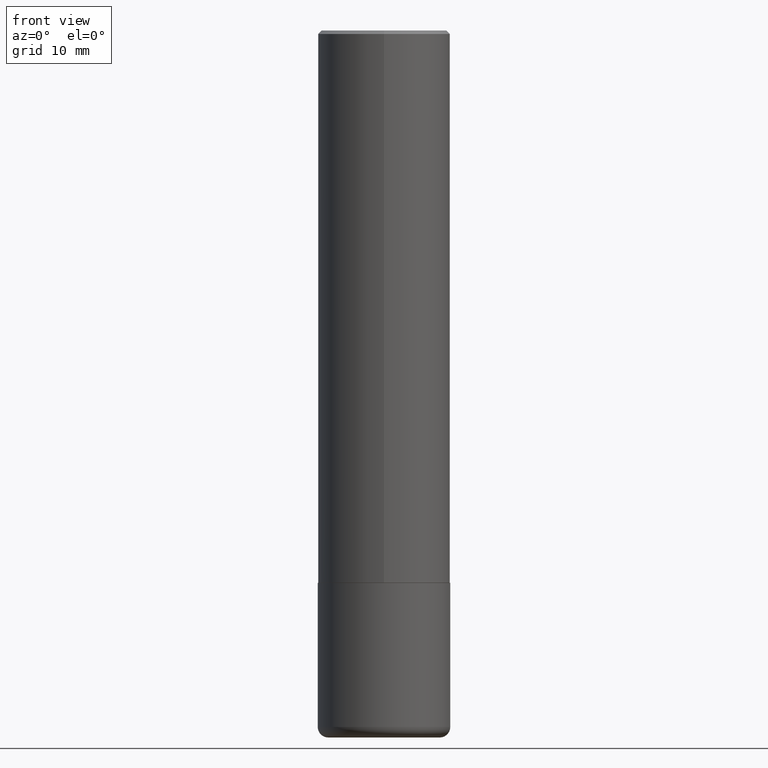
[diagram: clean part render]
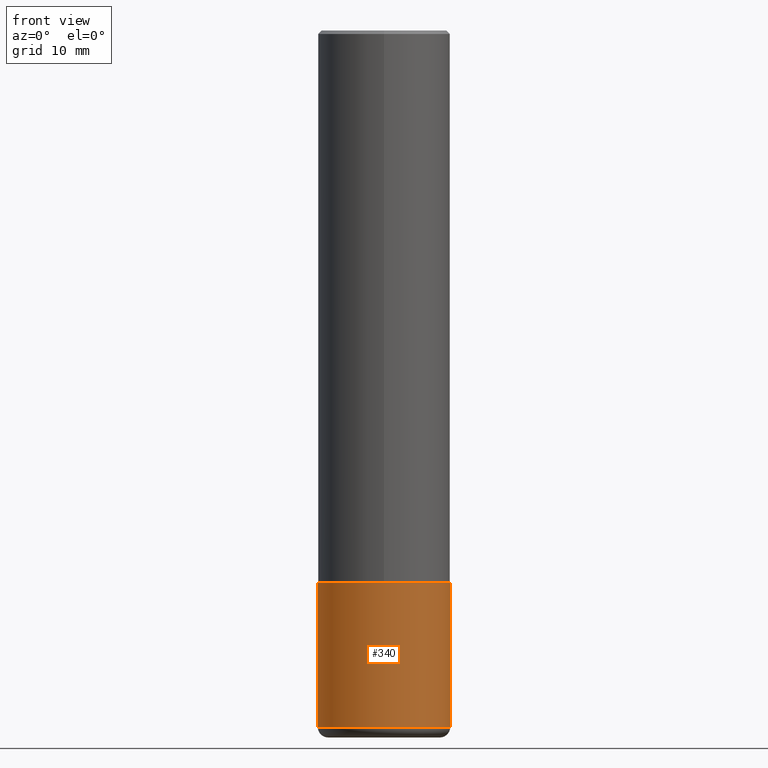
[diagram: same view with one face highlighted and labeled with its STEP entity id]
A machine part, front view. The second image highlights one B-rep face of the part: STEP entity #340.
In plain terms, the highlighted cylindrical surface (partial cylindrical patch) has radius 9.525 mm, axis along (-0, 0, 1).
Its self-contained STEP definition (entity closure, byte-faithful):
#11 = VERTEX_POINT ( 'NONE', #375 ) ;
#21 = AXIS2_PLACEMENT_3D ( 'NONE', #51, #395, #403 ) ;
#22 = DIRECTION ( 'NONE',  ( -2.445468806185136597E-29, 3.491481338843145583E-15, 1.000000000000000000 ) ) ;
#34 = EDGE_CURVE ( 'NONE', #295, #45, #296, .T. ) ;
#38 = DIRECTION ( 'NONE',  ( -2.445468806185136877E-29, 3.491481338843145188E-15, 1.000000000000000000 ) ) ;
#45 = VERTEX_POINT ( 'NONE', #65 ) ;
#51 = CARTESIAN_POINT ( 'NONE',  ( 7.642090019328551865E-29, -1.091087918388483118E-14, -3.125000000000000000 ) ) ;
#52 = DIRECTION ( 'NONE',  ( -2.445468806185136597E-29, 3.491481338843145583E-15, 1.000000000000000000 ) ) ;
#65 = CARTESIAN_POINT ( 'NONE',  ( 0.3749999999999999445, -1.637504747917434403E-14, -3.939999999999999947 ) ) ;
#82 = EDGE_LOOP ( 'NONE', ( #298, #108, #207, #368 ) ) ;
#102 = LINE ( 'NONE', #157, #193 ) ;
#108 = ORIENTED_EDGE ( 'NONE', *, *, #34, .T. ) ;
#120 = CARTESIAN_POINT ( 'NONE',  ( 9.635147096369438236E-29, -1.375643647504199401E-14, -3.939999999999999947 ) ) ;
#136 = EDGE_CURVE ( 'NONE', #295, #401, #264, .T. ) ;
#157 = CARTESIAN_POINT ( 'NONE',  ( 0.3750000000000000555, -2.618611004132350016E-15, 1.828566290923476203E-29 ) ) ;
#161 = CARTESIAN_POINT ( 'NONE',  ( -0.3749999999999999445, -1.109190121594161832E-14, -3.939999999999999947 ) ) ;
#166 = AXIS2_PLACEMENT_3D ( 'NONE', #120, #52, #252 ) ;
#193 = VECTOR ( 'NONE', #349, 39.37007874015748143 ) ;
#207 = ORIENTED_EDGE ( 'NONE', *, *, #371, .T. ) ;
#226 = CARTESIAN_POINT ( 'NONE',  ( -0.3750000000000000555, -9.669122570363036899E-15, -3.125000000000000000 ) ) ;
#250 = DIRECTION ( 'NONE',  ( 1.000000000000000000, -6.982962677686265922E-15, 4.876176775795935793E-29 ) ) ;
#252 = DIRECTION ( 'NONE',  ( 1.000000000000000000, -6.982962677686266711E-15, 0.000000000000000000 ) ) ;
#258 = EDGE_CURVE ( 'NONE', #401, #11, #361, .T. ) ;
#264 = LINE ( 'NONE', #325, #415 ) ;
#282 = FACE_OUTER_BOUND ( 'NONE', #82, .T. ) ;
#295 = VERTEX_POINT ( 'NONE', #161 ) ;
#296 = CIRCLE ( 'NONE', #166, 0.3750000000000000555 ) ;
#298 = ORIENTED_EDGE ( 'NONE', *, *, #136, .F. ) ;
#306 = CARTESIAN_POINT ( 'NONE',  ( 0.000000000000000000, 0.000000000000000000, 0.000000000000000000 ) ) ;
#325 = CARTESIAN_POINT ( 'NONE',  ( -0.3750000000000000555, 2.664535259100376091E-15, -1.844600658845589598E-29 ) ) ;
#339 = CYLINDRICAL_SURFACE ( 'NONE', #369, 0.3750000000000000555 ) ;
#340 = ADVANCED_FACE ( 'NONE', ( #282 ), #339, .T. ) ;
#349 = DIRECTION ( 'NONE',  ( -2.445468806185136877E-29, 3.491481338843145188E-15, 1.000000000000000000 ) ) ;
#361 = CIRCLE ( 'NONE', #21, 0.3750000000000000555 ) ;
#368 = ORIENTED_EDGE ( 'NONE', *, *, #258, .F. ) ;
#369 = AXIS2_PLACEMENT_3D ( 'NONE', #306, #22, #250 ) ;
#371 = EDGE_CURVE ( 'NONE', #45, #11, #102, .T. ) ;
#375 = CARTESIAN_POINT ( 'NONE',  ( 0.3750000000000000555, -1.352949018801718119E-14, -3.125000000000000000 ) ) ;
#395 = DIRECTION ( 'NONE',  ( -2.445468806185136597E-29, 3.491481338843145583E-15, 1.000000000000000000 ) ) ;
#401 = VERTEX_POINT ( 'NONE', #226 ) ;
#403 = DIRECTION ( 'NONE',  ( 1.000000000000000000, -6.982962677686266711E-15, 0.000000000000000000 ) ) ;
#415 = VECTOR ( 'NONE', #38, 39.37007874015748143 ) ;